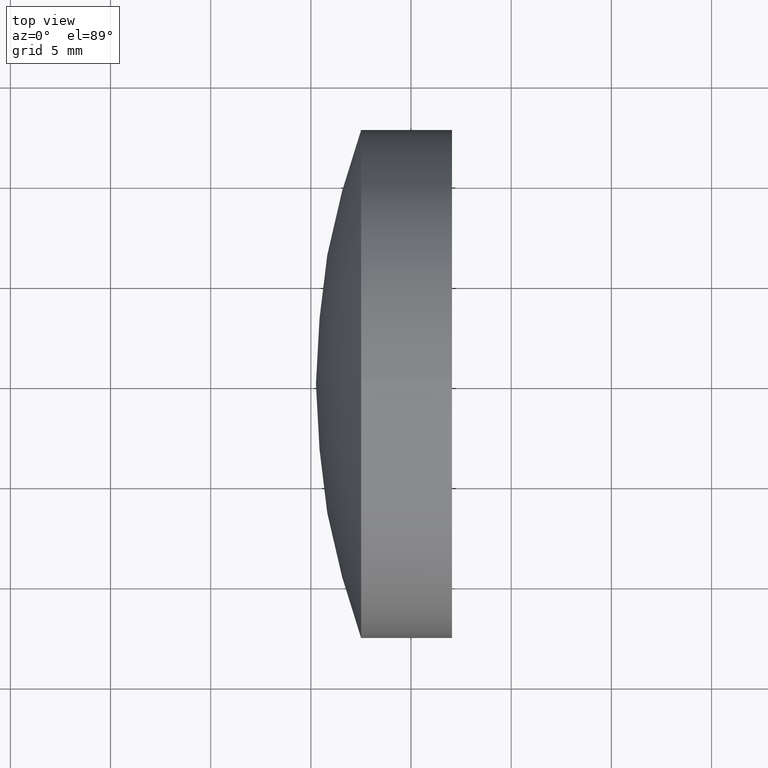
[diagram: clean part render]
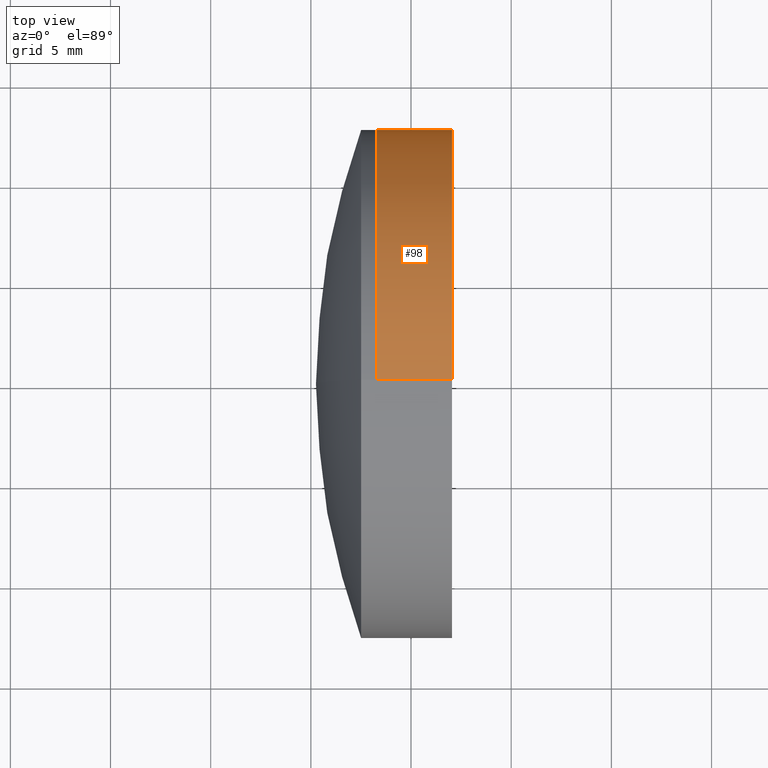
[diagram: same view with one face highlighted and labeled with its STEP entity id]
A machine part, top view. The second image highlights one B-rep face of the part: STEP entity #98.
In plain terms, the highlighted cylindrical surface (partial cylindrical patch) has radius 12.7 mm, axis along (-1, -0, -0).
Its self-contained STEP definition (entity closure, byte-faithful):
#14 = VECTOR ( 'NONE', #19, 1000.000000000000000 ) ;
#18 = CARTESIAN_POINT ( 'NONE',  ( 307.0473420726939900, 0.0000000000000000000, 0.0000000000000000000 ) ) ;
#19 = DIRECTION ( 'NONE',  ( -1.000000000000000000, -0.0000000000000000000, -0.0000000000000000000 ) ) ;
#28 = CARTESIAN_POINT ( 'NONE',  ( 307.0473420726939900, 0.0000000000000000000, 12.69999999999999900 ) ) ;
#39 = DIRECTION ( 'NONE',  ( 0.0000000000000000000, 0.0000000000000000000, 1.000000000000000000 ) ) ;
#46 = CARTESIAN_POINT ( 'NONE',  ( 303.2964480163323600, 0.0000000000000000000, 0.0000000000000000000 ) ) ;
#65 = EDGE_CURVE ( 'NONE', #231, #297, #88, .T. ) ;
#71 = VERTEX_POINT ( 'NONE', #203 ) ;
#81 = VECTOR ( 'NONE', #230, 1000.000000000000000 ) ;
#82 = VERTEX_POINT ( 'NONE', #101 ) ;
#84 = EDGE_CURVE ( 'NONE', #82, #71, #149, .T. ) ;
#88 = LINE ( 'NONE', #105, #14 ) ;
#98 = ADVANCED_FACE ( 'NONE', ( #308 ), #246, .T. ) ;
#101 = CARTESIAN_POINT ( 'NONE',  ( 307.0473420726939900, 1.555301434917138800E-015, -12.69999999999999900 ) ) ;
#105 = CARTESIAN_POINT ( 'NONE',  ( -0.5519199926577972300, 0.0000000000000000000, 12.70000000000000600 ) ) ;
#113 = ORIENTED_EDGE ( 'NONE', *, *, #343, .F. ) ;
#124 = DIRECTION ( 'NONE',  ( 0.0000000000000000000, 0.0000000000000000000, 1.000000000000000000 ) ) ;
#127 = CARTESIAN_POINT ( 'NONE',  ( -0.5519199926577972300, 1.555301434917139200E-015, -12.70000000000000600 ) ) ;
#143 = ORIENTED_EDGE ( 'NONE', *, *, #84, .T. ) ;
#149 = LINE ( 'NONE', #127, #81 ) ;
#157 = AXIS2_PLACEMENT_3D ( 'NONE', #259, #257, #124 ) ;
#177 = DIRECTION ( 'NONE',  ( -1.000000000000000000, -0.0000000000000000000, -0.0000000000000000000 ) ) ;
#196 = DIRECTION ( 'NONE',  ( -1.000000000000000000, -0.0000000000000000000, -0.0000000000000000000 ) ) ;
#203 = CARTESIAN_POINT ( 'NONE',  ( 303.2964480163323600, 1.555301434917139600E-015, -12.70000000000000300 ) ) ;
#230 = DIRECTION ( 'NONE',  ( -1.000000000000000000, -0.0000000000000000000, -0.0000000000000000000 ) ) ;
#231 = VERTEX_POINT ( 'NONE', #28 ) ;
#242 = CARTESIAN_POINT ( 'NONE',  ( 303.2964480163323600, 0.0000000000000000000, 12.70000000000001000 ) ) ;
#246 = CYLINDRICAL_SURFACE ( 'NONE', #157, 12.70000000000000600 ) ;
#250 = CIRCLE ( 'NONE', #329, 12.70000000000001500 ) ;
#257 = DIRECTION ( 'NONE',  ( -1.000000000000000000, -0.0000000000000000000, -0.0000000000000000000 ) ) ;
#258 = ORIENTED_EDGE ( 'NONE', *, *, #65, .F. ) ;
#259 = CARTESIAN_POINT ( 'NONE',  ( -0.5519199926577972300, 0.0000000000000000000, 0.0000000000000000000 ) ) ;
#266 = ORIENTED_EDGE ( 'NONE', *, *, #322, .T. ) ;
#278 = AXIS2_PLACEMENT_3D ( 'NONE', #18, #177, #336 ) ;
#297 = VERTEX_POINT ( 'NONE', #242 ) ;
#308 = FACE_OUTER_BOUND ( 'NONE', #314, .T. ) ;
#314 = EDGE_LOOP ( 'NONE', ( #266, #143, #113, #258 ) ) ;
#322 = EDGE_CURVE ( 'NONE', #231, #82, #338, .T. ) ;
#329 = AXIS2_PLACEMENT_3D ( 'NONE', #46, #196, #39 ) ;
#336 = DIRECTION ( 'NONE',  ( 0.0000000000000000000, 0.0000000000000000000, 1.000000000000000000 ) ) ;
#338 = CIRCLE ( 'NONE', #278, 12.69999999999999900 ) ;
#343 = EDGE_CURVE ( 'NONE', #297, #71, #250, .T. ) ;